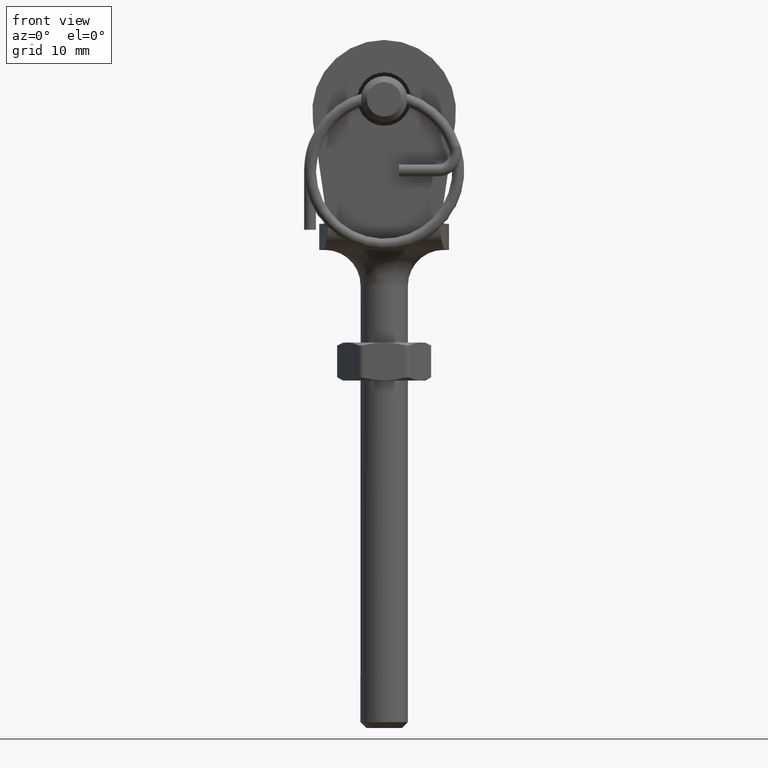
[diagram: clean part render]
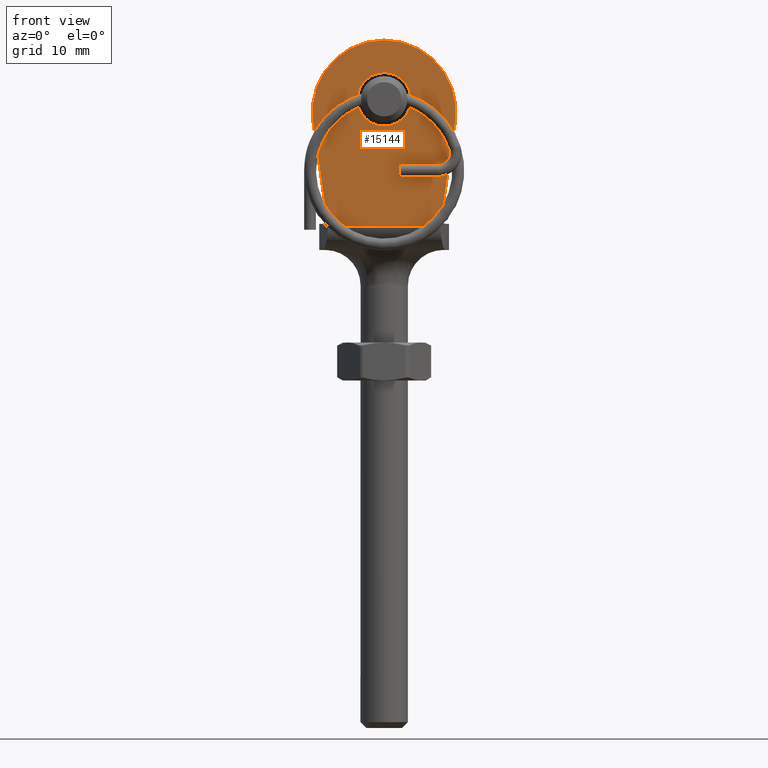
[diagram: same view with one face highlighted and labeled with its STEP entity id]
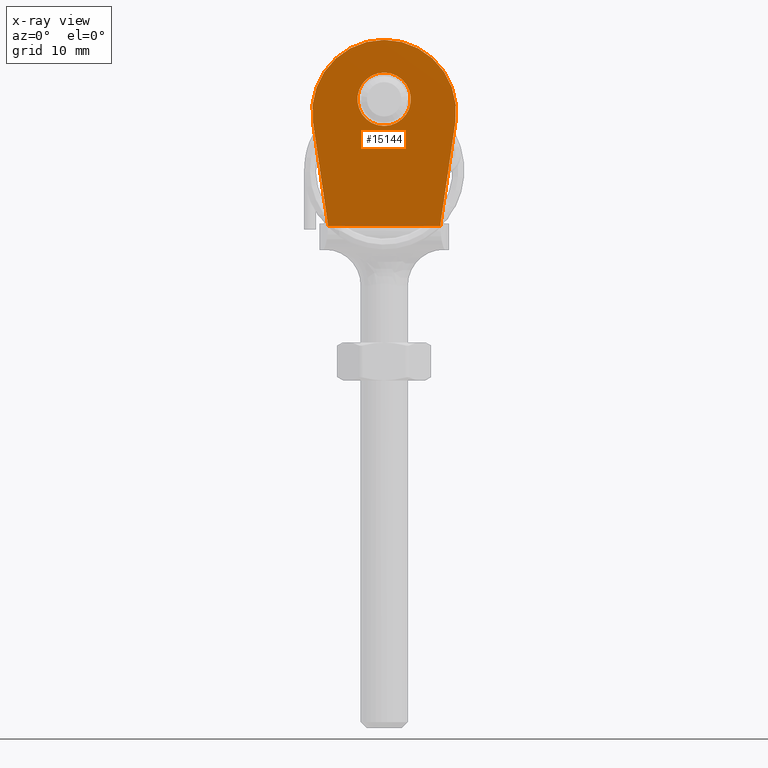
[diagram: x-ray of the same camera — body ghosted, the highlighted face saturated]
A machine part, front view. The second image highlights one B-rep face of the part: STEP entity #15144.
The next image is the same camera in x-ray: the body ghosted, the highlighted face saturated — about 0% of this face is hidden behind the body in this view.
In plain terms, the highlighted planar face has unit normal (0, 1, 0).
Its self-contained STEP definition (entity closure, byte-faithful):
#268 = ORIENTED_EDGE ( 'NONE', *, *, #6545, .F. ) ;
#646 = DIRECTION ( 'NONE',  ( 0.000000000000000000, 0.000000000000000000, -1.000000000000000000 ) ) ;
#674 = DIRECTION ( 'NONE',  ( 0.000000000000000000, -0.000000000000000000, 1.000000000000000000 ) ) ;
#2110 = DIRECTION ( 'NONE',  ( -0.1444918574591643468, 0.000000000000000000, 0.9895059894351324603 ) ) ;
#2854 = CARTESIAN_POINT ( 'NONE',  ( 0.000000000000000000, -5.700000000000000178, 12.75000000000000178 ) ) ;
#2891 = ORIENTED_EDGE ( 'NONE', *, *, #3460, .T. ) ;
#3460 = EDGE_CURVE ( 'NONE', #18345, #16493, #7581, .T. ) ;
#4900 = VECTOR ( 'NONE', #8006, 1000.000000000000000 ) ;
#5108 = AXIS2_PLACEMENT_3D ( 'NONE', #13103, #6875, #674 ) ;
#5418 = DIRECTION ( 'NONE',  ( 1.224646799147353207E-16, -0.000000000000000000, 1.000000000000000000 ) ) ;
#5816 = EDGE_CURVE ( 'NONE', #8816, #8816, #14937, .T. ) ;
#6545 = EDGE_CURVE ( 'NONE', #12964, #16493, #9801, .T. ) ;
#6807 = PLANE ( 'NONE',  #5108 ) ;
#6875 = DIRECTION ( 'NONE',  ( 0.000000000000000000, 1.000000000000000000, 0.000000000000000000 ) ) ;
#7238 = CARTESIAN_POINT ( 'NONE',  ( -4.750000000000000888, -5.699999999999996625, 5.817072295949930384E-16 ) ) ;
#7581 = LINE ( 'NONE', #14375, #4900 ) ;
#7695 = CARTESIAN_POINT ( 'NONE',  ( 4.750000000000000888, -5.700000000000000178, -0.2000000000000005107 ) ) ;
#7784 = ORIENTED_EDGE ( 'NONE', *, *, #9157, .F. ) ;
#7872 = VECTOR ( 'NONE', #17537, 1000.000000000000000 ) ;
#8006 = DIRECTION ( 'NONE',  ( 1.224646799147353207E-16, -0.000000000000000000, 1.000000000000000000 ) ) ;
#8167 = CARTESIAN_POINT ( 'NONE',  ( -5.999999999999999112, -5.700000000000000178, 8.560222759566077144 ) ) ;
#8603 = VECTOR ( 'NONE', #14212, 999.9999999999998863 ) ;
#8816 = VERTEX_POINT ( 'NONE', #2854 ) ;
#8858 = ORIENTED_EDGE ( 'NONE', *, *, #5816, .T. ) ;
#9100 = EDGE_CURVE ( 'NONE', #10651, #18345, #17052, .T. ) ;
#9157 = EDGE_CURVE ( 'NONE', #12440, #12964, #11263, .T. ) ;
#9801 = LINE ( 'NONE', #12739, #8603 ) ;
#9857 = FACE_BOUND ( 'NONE', #11714, .T. ) ;
#10119 = CARTESIAN_POINT ( 'NONE',  ( 8.659864886992019307E-16, -5.700000000000000178, 9.436368183657842579 ) ) ;
#10651 = VERTEX_POINT ( 'NONE', #13401 ) ;
#10757 = EDGE_LOOP ( 'NONE', ( #12100, #14470, #2891, #268, #7784, #11923 ) ) ;
#10897 = CARTESIAN_POINT ( 'NONE',  ( -5.999999999999998224, -5.700000000000000178, 8.560222759566078921 ) ) ;
#11263 = CIRCLE ( 'NONE', #11441, 6.063631816342160086 ) ;
#11352 = FACE_OUTER_BOUND ( 'NONE', #10757, .T. ) ;
#11441 = AXIS2_PLACEMENT_3D ( 'NONE', #10119, #11638, #646 ) ;
#11638 = DIRECTION ( 'NONE',  ( -0.000000000000000000, 1.000000000000000000, -0.000000000000000000 ) ) ;
#11714 = EDGE_LOOP ( 'NONE', ( #8858 ) ) ;
#11797 = VECTOR ( 'NONE', #5418, 1000.000000000000000 ) ;
#11923 = ORIENTED_EDGE ( 'NONE', *, *, #14090, .F. ) ;
#12100 = ORIENTED_EDGE ( 'NONE', *, *, #18575, .F. ) ;
#12440 = VERTEX_POINT ( 'NONE', #10897 ) ;
#12615 = LINE ( 'NONE', #8167, #13317 ) ;
#12692 = CARTESIAN_POINT ( 'NONE',  ( 4.750000000000000888, -5.700000000000000178, 5.388507560391507245E-16 ) ) ;
#12739 = CARTESIAN_POINT ( 'NONE',  ( 4.750000000000000888, -5.700000000000000178, 5.388507560391507245E-16 ) ) ;
#12964 = VERTEX_POINT ( 'NONE', #17647 ) ;
#13103 = CARTESIAN_POINT ( 'NONE',  ( 4.750000000000000888, -5.700000000000000178, -2.200000000000000622 ) ) ;
#13317 = VECTOR ( 'NONE', #2110, 1000.000000000000000 ) ;
#13401 = CARTESIAN_POINT ( 'NONE',  ( -4.750000000000000888, -5.699999999999996625, -0.1999999999999992339 ) ) ;
#13402 = CARTESIAN_POINT ( 'NONE',  ( -4.750000000000000888, -5.699999999999996625, -2.199999999999999734 ) ) ;
#14015 = VERTEX_POINT ( 'NONE', #7238 ) ;
#14090 = EDGE_CURVE ( 'NONE', #14015, #12440, #12615, .T. ) ;
#14212 = DIRECTION ( 'NONE',  ( -0.1444918574591642357, 0.000000000000000000, -0.9895059894351325713 ) ) ;
#14375 = CARTESIAN_POINT ( 'NONE',  ( 4.750000000000000888, -5.700000000000000178, -2.200000000000000622 ) ) ;
#14470 = ORIENTED_EDGE ( 'NONE', *, *, #9100, .T. ) ;
#14937 = CIRCLE ( 'NONE', #18218, 2.250000000000000444 ) ;
#14952 = DIRECTION ( 'NONE',  ( 0.000000000000000000, 0.000000000000000000, 1.000000000000000000 ) ) ;
#15144 = ADVANCED_FACE ( 'NONE', ( #9857, #11352 ), #6807, .F. ) ;
#15866 = LINE ( 'NONE', #13402, #11797 ) ;
#16493 = VERTEX_POINT ( 'NONE', #12692 ) ;
#17052 = LINE ( 'NONE', #18898, #7872 ) ;
#17537 = DIRECTION ( 'NONE',  ( 1.000000000000000000, -0.000000000000000000, -1.224646799147353207E-16 ) ) ;
#17647 = CARTESIAN_POINT ( 'NONE',  ( 6.000000000000000000, -5.700000000000000178, 8.560222759566077144 ) ) ;
#17958 = CARTESIAN_POINT ( 'NONE',  ( 0.000000000000000000, -5.700000000000000178, 10.50000000000000000 ) ) ;
#18218 = AXIS2_PLACEMENT_3D ( 'NONE', #17958, #19427, #14952 ) ;
#18345 = VERTEX_POINT ( 'NONE', #7695 ) ;
#18575 = EDGE_CURVE ( 'NONE', #10651, #14015, #15866, .T. ) ;
#18898 = CARTESIAN_POINT ( 'NONE',  ( 4.750000000000000888, -5.700000000000000178, -0.2000000000000005107 ) ) ;
#19427 = DIRECTION ( 'NONE',  ( 0.000000000000000000, 1.000000000000000000, 0.000000000000000000 ) ) ;